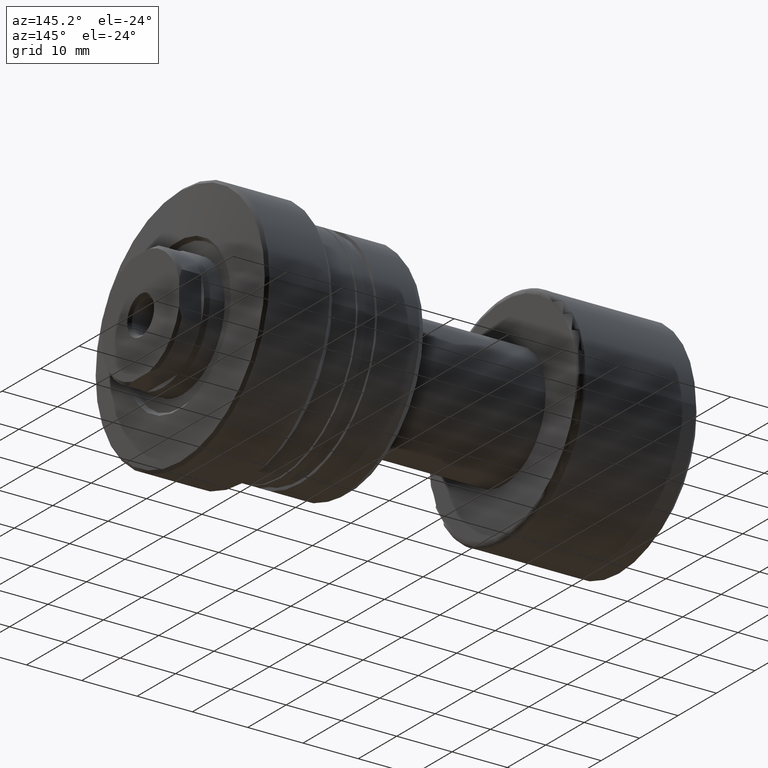
[diagram: clean part render]
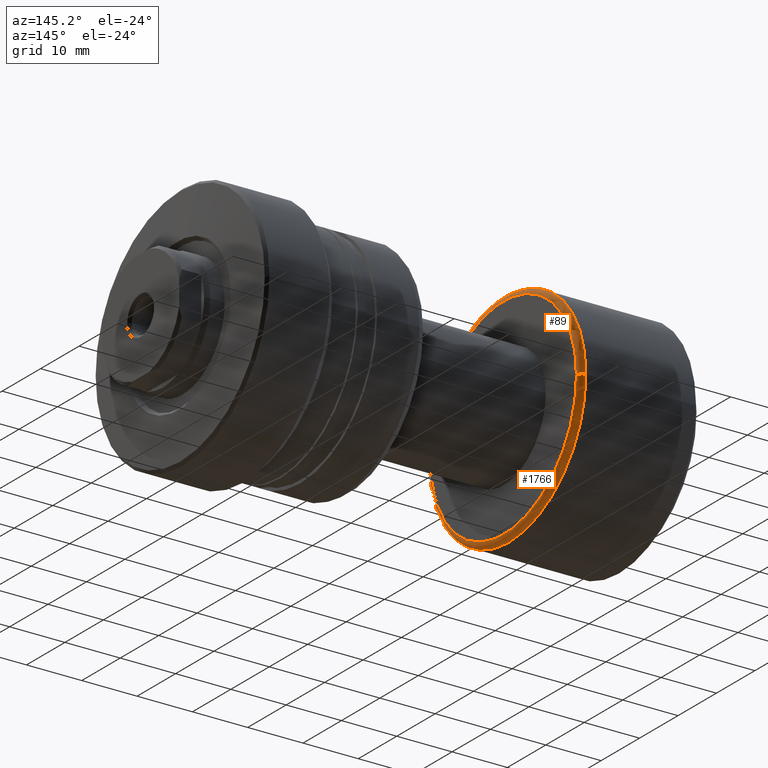
[diagram: same view with one multi-face feature highlighted, each face labeled with its STEP entity id]
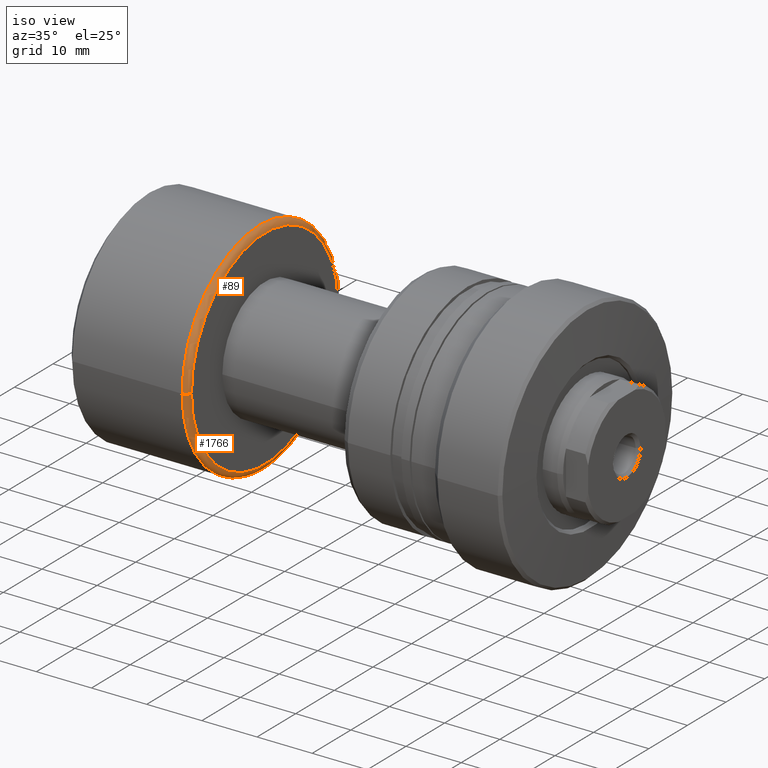
[diagram: same view with one multi-face feature highlighted, each face labeled with its STEP entity id]
A machine part, auxiliary view. The highlighted faces form ONE feature: a constant-radius fillet chain: 2 tangent blend faces with common blend radius 1 mm. The faces share edges in the B-rep.
A second angle (iso view) of the same feature is appended — it is thin or edge-on in the first view.
Their STEP definitions:
[1] entity #1766 (Torus):
#115 = DIRECTION ( 'NONE',  ( -1.000000000000000000, -1.069542322069065801E-17, -0.000000000000000000 ) ) ;
#270 = VERTEX_POINT ( 'NONE', #2372 ) ;
#411 = VERTEX_POINT ( 'NONE', #2317 ) ;
#443 = TOROIDAL_SURFACE ( 'NONE', #723, 19.00000000000000000, 1.000000000000000888 ) ;
#541 = DIRECTION ( 'NONE',  ( 0.000000000000000000, -1.000000000000000000, -1.224646799147353454E-16 ) ) ;
#557 = DIRECTION ( 'NONE',  ( 0.000000000000000000, -1.000000000000000000, 0.000000000000000000 ) ) ;
#602 = AXIS2_PLACEMENT_3D ( 'NONE', #2205, #995, #1846 ) ;
#694 = DIRECTION ( 'NONE',  ( 1.309811581274509052E-33, -1.224646799147353207E-16, 1.000000000000000000 ) ) ;
#723 = AXIS2_PLACEMENT_3D ( 'NONE', #1818, #115, #1647 ) ;
#748 = DIRECTION ( 'NONE',  ( -1.000000000000000000, -1.069542322069065801E-17, -0.000000000000000000 ) ) ;
#792 = VERTEX_POINT ( 'NONE', #2082 ) ;
#945 = CARTESIAN_POINT ( 'NONE',  ( 22.39999999999999858, -19.00000000000000000, 0.000000000000000000 ) ) ;
#966 = CIRCLE ( 'NONE', #1731, 20.00000000000000000 ) ;
#995 = DIRECTION ( 'NONE',  ( 0.000000000000000000, 0.000000000000000000, -1.000000000000000000 ) ) ;
#1029 = DIRECTION ( 'NONE',  ( -1.000000000000000000, -1.069542322069065801E-17, -0.000000000000000000 ) ) ;
#1050 = VERTEX_POINT ( 'NONE', #945 ) ;
#1111 = EDGE_CURVE ( 'NONE', #411, #1050, #1290, .T. ) ;
#1130 = EDGE_LOOP ( 'NONE', ( #1493, #1229, #2167, #1908 ) ) ;
#1229 = ORIENTED_EDGE ( 'NONE', *, *, #1111, .T. ) ;
#1253 = AXIS2_PLACEMENT_3D ( 'NONE', #2198, #694, #541 ) ;
#1290 = CIRCLE ( 'NONE', #1871, 19.00000000000000000 ) ;
#1375 = EDGE_CURVE ( 'NONE', #1050, #792, #1645, .T. ) ;
#1493 = ORIENTED_EDGE ( 'NONE', *, *, #1573, .F. ) ;
#1573 = EDGE_CURVE ( 'NONE', #411, #270, #2266, .T. ) ;
#1645 = CIRCLE ( 'NONE', #602, 1.000000000000000888 ) ;
#1647 = DIRECTION ( 'NONE',  ( 1.069542322069065801E-17, -1.000000000000000000, 0.000000000000000000 ) ) ;
#1731 = AXIS2_PLACEMENT_3D ( 'NONE', #2412, #748, #557 ) ;
#1766 = ADVANCED_FACE ( 'NONE', ( #1997 ), #443, .T. ) ;
#1818 = CARTESIAN_POINT ( 'NONE',  ( 21.39999999999999858, 0.000000000000000000, 0.000000000000000000 ) ) ;
#1846 = DIRECTION ( 'NONE',  ( -1.000000000000000000, 0.000000000000000000, 0.000000000000000000 ) ) ;
#1871 = AXIS2_PLACEMENT_3D ( 'NONE', #2326, #1029, #1916 ) ;
#1908 = ORIENTED_EDGE ( 'NONE', *, *, #1922, .F. ) ;
#1916 = DIRECTION ( 'NONE',  ( 0.000000000000000000, -1.000000000000000000, 0.000000000000000000 ) ) ;
#1922 = EDGE_CURVE ( 'NONE', #270, #792, #966, .T. ) ;
#1997 = FACE_OUTER_BOUND ( 'NONE', #1130, .T. ) ;
#2082 = CARTESIAN_POINT ( 'NONE',  ( 21.40000000000000213, -20.00000000000000000, 0.000000000000000000 ) ) ;
#2167 = ORIENTED_EDGE ( 'NONE', *, *, #1375, .T. ) ;
#2198 = CARTESIAN_POINT ( 'NONE',  ( 21.39999999999999858, 19.00000000000000000, 2.326828918379970970E-15 ) ) ;
#2205 = CARTESIAN_POINT ( 'NONE',  ( 21.39999999999999858, -19.00000000000000000, 0.000000000000000000 ) ) ;
#2266 = CIRCLE ( 'NONE', #1253, 1.000000000000000888 ) ;
#2317 = CARTESIAN_POINT ( 'NONE',  ( 22.39999999999999858, 19.00000000000000000, 2.388061258337338939E-15 ) ) ;
#2326 = CARTESIAN_POINT ( 'NONE',  ( 22.39999999999999858, 2.395774801434707739E-16, 0.000000000000000000 ) ) ;
#2372 = CARTESIAN_POINT ( 'NONE',  ( 21.40000000000000213, 20.00000000000000000, 2.449293598294706513E-15 ) ) ;
#2412 = CARTESIAN_POINT ( 'NONE',  ( 21.40000000000000213, 2.288820569227801297E-16, 0.000000000000000000 ) ) ;
[2] entity #89 (Torus):
#10 = EDGE_CURVE ( 'NONE', #792, #270, #2255, .T. ) ;
#21 = AXIS2_PLACEMENT_3D ( 'NONE', #759, #181, #2438 ) ;
#89 = ADVANCED_FACE ( 'NONE', ( #2098 ), #1058, .T. ) ;
#181 = DIRECTION ( 'NONE',  ( -1.000000000000000000, -1.069542322069065801E-17, -0.000000000000000000 ) ) ;
#238 = DIRECTION ( 'NONE',  ( -1.000000000000000000, -1.069542322069065801E-17, -0.000000000000000000 ) ) ;
#270 = VERTEX_POINT ( 'NONE', #2372 ) ;
#411 = VERTEX_POINT ( 'NONE', #2317 ) ;
#465 = ORIENTED_EDGE ( 'NONE', *, *, #1375, .F. ) ;
#541 = DIRECTION ( 'NONE',  ( 0.000000000000000000, -1.000000000000000000, -1.224646799147353454E-16 ) ) ;
#602 = AXIS2_PLACEMENT_3D ( 'NONE', #2205, #995, #1846 ) ;
#631 = DIRECTION ( 'NONE',  ( -1.000000000000000000, -1.069542322069065801E-17, -0.000000000000000000 ) ) ;
#694 = DIRECTION ( 'NONE',  ( 1.309811581274509052E-33, -1.224646799147353207E-16, 1.000000000000000000 ) ) ;
#759 = CARTESIAN_POINT ( 'NONE',  ( 21.40000000000000213, 2.288820569227801297E-16, 0.000000000000000000 ) ) ;
#777 = CARTESIAN_POINT ( 'NONE',  ( 22.39999999999999858, 2.395774801434707739E-16, 0.000000000000000000 ) ) ;
#792 = VERTEX_POINT ( 'NONE', #2082 ) ;
#945 = CARTESIAN_POINT ( 'NONE',  ( 22.39999999999999858, -19.00000000000000000, 0.000000000000000000 ) ) ;
#982 = ORIENTED_EDGE ( 'NONE', *, *, #10, .F. ) ;
#995 = DIRECTION ( 'NONE',  ( 0.000000000000000000, 0.000000000000000000, -1.000000000000000000 ) ) ;
#1050 = VERTEX_POINT ( 'NONE', #945 ) ;
#1058 = TOROIDAL_SURFACE ( 'NONE', #1404, 19.00000000000000000, 1.000000000000000888 ) ;
#1217 = ORIENTED_EDGE ( 'NONE', *, *, #1573, .T. ) ;
#1253 = AXIS2_PLACEMENT_3D ( 'NONE', #2198, #694, #541 ) ;
#1337 = CIRCLE ( 'NONE', #1646, 19.00000000000000000 ) ;
#1375 = EDGE_CURVE ( 'NONE', #1050, #792, #1645, .T. ) ;
#1404 = AXIS2_PLACEMENT_3D ( 'NONE', #1917, #238, #1928 ) ;
#1571 = DIRECTION ( 'NONE',  ( 0.000000000000000000, -1.000000000000000000, 0.000000000000000000 ) ) ;
#1573 = EDGE_CURVE ( 'NONE', #411, #270, #2266, .T. ) ;
#1645 = CIRCLE ( 'NONE', #602, 1.000000000000000888 ) ;
#1646 = AXIS2_PLACEMENT_3D ( 'NONE', #777, #631, #1571 ) ;
#1846 = DIRECTION ( 'NONE',  ( -1.000000000000000000, 0.000000000000000000, 0.000000000000000000 ) ) ;
#1917 = CARTESIAN_POINT ( 'NONE',  ( 21.39999999999999858, 0.000000000000000000, 0.000000000000000000 ) ) ;
#1928 = DIRECTION ( 'NONE',  ( 1.069542322069065801E-17, -1.000000000000000000, 0.000000000000000000 ) ) ;
#2005 = ORIENTED_EDGE ( 'NONE', *, *, #2035, .T. ) ;
#2035 = EDGE_CURVE ( 'NONE', #1050, #411, #1337, .T. ) ;
#2082 = CARTESIAN_POINT ( 'NONE',  ( 21.40000000000000213, -20.00000000000000000, 0.000000000000000000 ) ) ;
#2087 = EDGE_LOOP ( 'NONE', ( #2005, #1217, #982, #465 ) ) ;
#2098 = FACE_OUTER_BOUND ( 'NONE', #2087, .T. ) ;
#2198 = CARTESIAN_POINT ( 'NONE',  ( 21.39999999999999858, 19.00000000000000000, 2.326828918379970970E-15 ) ) ;
#2205 = CARTESIAN_POINT ( 'NONE',  ( 21.39999999999999858, -19.00000000000000000, 0.000000000000000000 ) ) ;
#2255 = CIRCLE ( 'NONE', #21, 20.00000000000000000 ) ;
#2266 = CIRCLE ( 'NONE', #1253, 1.000000000000000888 ) ;
#2317 = CARTESIAN_POINT ( 'NONE',  ( 22.39999999999999858, 19.00000000000000000, 2.388061258337338939E-15 ) ) ;
#2372 = CARTESIAN_POINT ( 'NONE',  ( 21.40000000000000213, 20.00000000000000000, 2.449293598294706513E-15 ) ) ;
#2438 = DIRECTION ( 'NONE',  ( 0.000000000000000000, -1.000000000000000000, 0.000000000000000000 ) ) ;